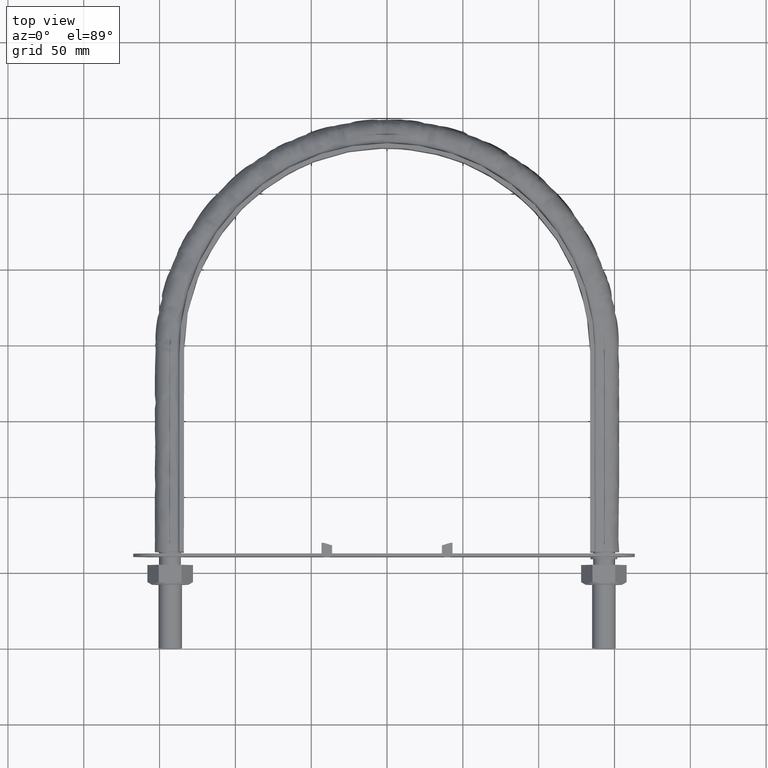
[diagram: clean part render]
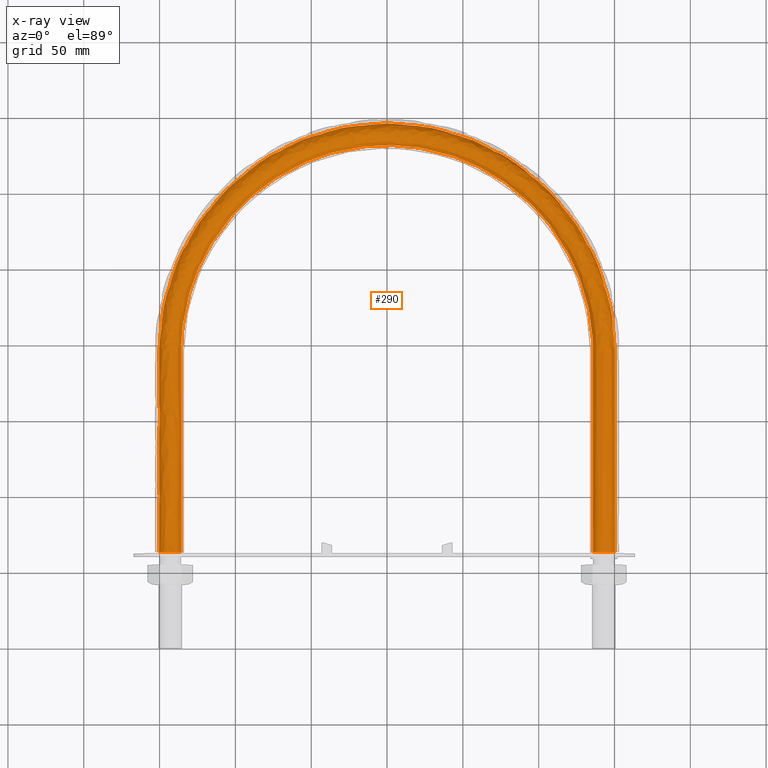
[diagram: x-ray — body ghosted, one internal face saturated and labeled with its STEP entity id]
A machine part, top view, then the same camera in x-ray: the body is ghosted and one INTERNAL B-rep face — a face not visible from any outside direction — is saturated and labeled: STEP entity #290.
In plain terms, the highlighted face is a freeform B-spline surface patch.
Its self-contained STEP definition (entity closure, byte-faithful):
#290 = ADVANCED_FACE( '', ( #415, #416 ), #417, .T. );
#415 = FACE_OUTER_BOUND( '', #1366, .T. );
#416 = FACE_OUTER_BOUND( '', #1367, .T. );
#417 = B_SPLINE_SURFACE_WITH_KNOTS( '', 3, 3, ( ( #1368, #1369, #1370, #1371, #1372, #1373, #1374, #1375, #1376, #1377, #1378, #1379, #1380, #1381, #1382, #1383, #1384 ), ( #1385, #1386, #1387, #1388, #1389, #1390, #1391, #1392, #1393, #1394, #1395, #1396, #1397, #1398, #1399, #1400, #1401 ), ( #1402, #1403, #1404, #1405, #1406, #1407, #1408, #1409, #1410, #1411, #1412, #1413, #1414, #1415, #1416, #1417, #1418 ), ( #1419, #1420, #1421, #1422, #1423, #1424, #1425, #1426, #1427, #1428, #1429, #1430, #1431, #1432, #1433, #1434, #1435 ), ( #1436, #1437, #1438, #1439, #1440, #1441, #1442, #1443, #1444, #1445, #1446, #1447, #1448, #1449, #1450, #1451, #1452 ), ( #1453, #1454, #1455, #1456, #1457, #1458, #1459, #1460, #1461, #1462, #1463, #1464, #1465, #1466, #1467, #1468, #1469 ), ( #1470, #1471, #1472, #1473, #1474, #1475, #1476, #1477, #1478, #1479, #1480, #1481, #1482, #1483, #1484, #1485, #1486 ), ( #1487, #1488, #1489, #1490, #1491, #1492, #1493, #1494, #1495, #1496, #1497, #1498, #1499, #1500, #1501, #1502, #1503 ), ( #1504, #1505, #1506, #1507, #1508, #1509, #1510, #1511, #1512, #1513, #1514, #1515, #1516, #1517, #1518, #1519, #1520 ), ( #1521, #1522, #1523, #1524, #1525, #1526, #1527, #1528, #1529, #1530, #1531, #1532, #1533, #1534, #1535, #1536, #1537 ), ( #1538, #1539, #1540, #1541, #1542, #1543, #1544, #1545, #1546, #1547, #1548, #1549, #1550, #1551, #1552, #1553, #1554 ) ), .UNSPECIFIED., .T., .F., .F., ( 2, 1, 1, 1, 1, 1, 1, 1, 1, 1, 1, 1, 2 ), ( 4, 3, 1, 1, 1, 1, 1, 1, 1, 3, 4 ), ( -0.250000000000000, -0.125000000000000, 0.000000000000000, 0.125000000000000, 0.250000000000000, 0.375000000000000, 0.500000000000000, 0.625000000000000, 0.750000000000000, 0.875000000000000, 1.00000000000000, 1.12500000000000, 1.25000000000000 ), ( 0.000000000000000, 1.00000000000000, 2.00000000000000, 3.00000000000000, 4.00000000000000, 5.00000000000000, 6.00000000000000, 7.00000000000000, 8.00000000000000, 9.00000000000000, 10.0000000000000 ), .UNSPECIFIED. );
#1366 = EDGE_LOOP( '', ( #2051, #2052, #2053, #2054, #2055, #2056, #2057, #2058 ) );
#1367 = EDGE_LOOP( '', ( #2059, #2060, #2061, #2062, #2063, #2064, #2065, #2066 ) );
#1368 = CARTESIAN_POINT( '', ( 137.436357463272, 54.9500000000000, -5.56364253672769 ) );
#1369 = CARTESIAN_POINT( '', ( 137.436357463272, 101.983333333333, -5.56364253672769 ) );
#1370 = CARTESIAN_POINT( '', ( 137.436357463272, 149.016666666667, -5.56364253672769 ) );
#1371 = CARTESIAN_POINT( '', ( 137.436357463272, 196.050000000000, -5.56364253672769 ) );
#1372 = CARTESIAN_POINT( '', ( 137.436357463272, 214.028352444625, -5.56364253672768 ) );
#1373 = CARTESIAN_POINT( '', ( 130.280303553579, 250.018327534897, -5.56364253672768 ) );
#1374 = CARTESIAN_POINT( '', ( 99.7122274668988, 295.761026995728, -5.56364253672770 ) );
#1375 = CARTESIAN_POINT( '', ( 53.9638686419761, 326.330646545342, -5.56364253672768 ) );
#1376 = CARTESIAN_POINT( '', ( 9.67882489103289E-014, 337.064212922238, -5.56364253672769 ) );
#1377 = CARTESIAN_POINT( '', ( -53.9638686419760, 326.330646545342, -5.56364253672769 ) );
#1378 = CARTESIAN_POINT( '', ( -99.7122274668987, 295.761026995728, -5.56364253672768 ) );
#1379 = CARTESIAN_POINT( '', ( -130.280303553579, 250.018327534896, -5.56364253672769 ) );
#1380 = CARTESIAN_POINT( '', ( -137.436357463272, 214.028352444625, -5.56364253672769 ) );
#1381 = CARTESIAN_POINT( '', ( -137.436357463272, 196.050000000000, -5.56364253672769 ) );
#1382 = CARTESIAN_POINT( '', ( -137.436357463272, 149.016666666667, -5.56364253672769 ) );
#1383 = CARTESIAN_POINT( '', ( -137.436357463272, 101.983333333333, -5.56364253672769 ) );
#1384 = CARTESIAN_POINT( '', ( -137.436357463272, 54.9500000000001, -5.56364253672769 ) );
#1385 = CARTESIAN_POINT( '', ( 135.131821268364, 54.9500000000000, 0.000000000000000 ) );
#1386 = CARTESIAN_POINT( '', ( 135.131821268364, 101.983333333333, 0.000000000000000 ) );
#1387 = CARTESIAN_POINT( '', ( 135.131821268364, 149.016666666667, 0.000000000000000 ) );
#1388 = CARTESIAN_POINT( '', ( 135.131821268364, 196.050000000000, 0.000000000000000 ) );
#1389 = CARTESIAN_POINT( '', ( 135.131821268364, 213.722751944464, 0.000000000000000 ) );
#1390 = CARTESIAN_POINT( '', ( 128.095760245211, 249.115307002900, 0.000000000000000 ) );
#1391 = CARTESIAN_POINT( '', ( 98.0402504041058, 294.088552681494, 0.000000000000000 ) );
#1392 = CARTESIAN_POINT( '', ( 53.0590011760586, 324.146245308814, 0.000000000000000 ) );
#1393 = CARTESIAN_POINT( '', ( 1.03437571945879E-013, 334.699609248139, 0.000000000000000 ) );
#1394 = CARTESIAN_POINT( '', ( -53.0590011760586, 324.146245308814, 0.000000000000000 ) );
#1395 = CARTESIAN_POINT( '', ( -98.0402504041056, 294.088552681494, 0.000000000000000 ) );
#1396 = CARTESIAN_POINT( '', ( -128.095760245211, 249.115307002900, 0.000000000000000 ) );
#1397 = CARTESIAN_POINT( '', ( -135.131821268364, 213.722751944464, 0.000000000000000 ) );
#1398 = CARTESIAN_POINT( '', ( -135.131821268364, 196.050000000000, 0.000000000000000 ) );
#1399 = CARTESIAN_POINT( '', ( -135.131821268364, 149.016666666667, 0.000000000000000 ) );
#1400 = CARTESIAN_POINT( '', ( -135.131821268364, 101.983333333333, 0.000000000000000 ) );
#1401 = CARTESIAN_POINT( '', ( -135.131821268364, 54.9500000000001, 0.000000000000000 ) );
#1402 = CARTESIAN_POINT( '', ( 137.436357463272, 54.9500000000000, 5.56364253672769 ) );
#1403 = CARTESIAN_POINT( '', ( 137.436357463272, 101.983333333333, 5.56364253672769 ) );
#1404 = CARTESIAN_POINT( '', ( 137.436357463272, 149.016666666667, 5.56364253672769 ) );
#1405 = CARTESIAN_POINT( '', ( 137.436357463272, 196.050000000000, 5.56364253672769 ) );
#1406 = CARTESIAN_POINT( '', ( 137.436357463272, 214.028352444625, 5.56364253672769 ) );
#1407 = CARTESIAN_POINT( '', ( 130.280303553579, 250.018327534897, 5.56364253672769 ) );
#1408 = CARTESIAN_POINT( '', ( 99.7122274668988, 295.761026995728, 5.56364253672770 ) );
#1409 = CARTESIAN_POINT( '', ( 53.9638686419761, 326.330646545342, 5.56364253672768 ) );
#1410 = CARTESIAN_POINT( '', ( 1.00257695862283E-013, 337.064212922238, 5.56364253672769 ) );
#1411 = CARTESIAN_POINT( '', ( -53.9638686419760, 326.330646545342, 5.56364253672769 ) );
#1412 = CARTESIAN_POINT( '', ( -99.7122274668987, 295.761026995728, 5.56364253672769 ) );
#1413 = CARTESIAN_POINT( '', ( -130.280303553579, 250.018327534896, 5.56364253672769 ) );
#1414 = CARTESIAN_POINT( '', ( -137.436357463272, 214.028352444625, 5.56364253672769 ) );
#1415 = CARTESIAN_POINT( '', ( -137.436357463272, 196.050000000000, 5.56364253672769 ) );
#1416 = CARTESIAN_POINT( '', ( -137.436357463272, 149.016666666667, 5.56364253672769 ) );
#1417 = CARTESIAN_POINT( '', ( -137.436357463272, 101.983333333333, 5.56364253672769 ) );
#1418 = CARTESIAN_POINT( '', ( -137.436357463272, 54.9500000000001, 5.56364253672769 ) );
#1419 = CARTESIAN_POINT( '', ( 143.000000000000, 54.9500000000000, 7.86817873163615 ) );
#1420 = CARTESIAN_POINT( '', ( 143.000000000000, 101.983333333333, 7.86817873163615 ) );
#1421 = CARTESIAN_POINT( '', ( 143.000000000000, 149.016666666667, 7.86817873163615 ) );
#1422 = CARTESIAN_POINT( '', ( 143.000000000000, 196.050000000000, 7.86817873163615 ) );
#1423 = CARTESIAN_POINT( '', ( 143.000000000000, 214.766137316781, 7.86817873163615 ) );
#1424 = CARTESIAN_POINT( '', ( 135.554257636233, 252.198411950344, 7.86817873163615 ) );
#1425 = CARTESIAN_POINT( '', ( 103.748737167870, 299.798737167870, 7.86817873163616 ) );
#1426 = CARTESIAN_POINT( '', ( 56.1484119503442, 331.604257636232, 7.86817873163614 ) );
#1427 = CARTESIAN_POINT( '', ( 9.40178878760316E-014, 342.772871181884, 7.86817873163615 ) );
#1428 = CARTESIAN_POINT( '', ( -56.1484119503442, 331.604257636232, 7.86817873163616 ) );
#1429 = CARTESIAN_POINT( '', ( -103.748737167870, 299.798737167870, 7.86817873163615 ) );
#1430 = CARTESIAN_POINT( '', ( -135.554257636232, 252.198411950344, 7.86817873163615 ) );
#1431 = CARTESIAN_POINT( '', ( -143.000000000000, 214.766137316781, 7.86817873163615 ) );
#1432 = CARTESIAN_POINT( '', ( -143.000000000000, 196.050000000000, 7.86817873163615 ) );
#1433 = CARTESIAN_POINT( '', ( -143.000000000000, 149.016666666667, 7.86817873163615 ) );
#1434 = CARTESIAN_POINT( '', ( -143.000000000000, 101.983333333333, 7.86817873163615 ) );
#1435 = CARTESIAN_POINT( '', ( -143.000000000000, 54.9500000000001, 7.86817873163615 ) );
#1436 = CARTESIAN_POINT( '', ( 148.563642536728, 54.9500000000000, 5.56364253672769 ) );
#1437 = CARTESIAN_POINT( '', ( 148.563642536728, 101.983333333333, 5.56364253672769 ) );
#1438 = CARTESIAN_POINT( '', ( 148.563642536728, 149.016666666667, 5.56364253672769 ) );
#1439 = CARTESIAN_POINT( '', ( 148.563642536728, 196.050000000000, 5.56364253672769 ) );
#1440 = CARTESIAN_POINT( '', ( 148.563642536728, 215.503922188938, 5.56364253672769 ) );
#1441 = CARTESIAN_POINT( '', ( 140.828211718886, 254.378496365792, 5.56364253672769 ) );
#1442 = CARTESIAN_POINT( '', ( 107.785246868842, 303.836447340013, 5.56364253672770 ) );
#1443 = CARTESIAN_POINT( '', ( 58.3329552587123, 336.877868727123, 5.56364253672768 ) );
#1444 = CARTESIAN_POINT( '', ( 8.43086329378271E-014, 348.481529441530, 5.56364253672769 ) );
#1445 = CARTESIAN_POINT( '', ( -58.3329552587123, 336.877868727123, 5.56364253672769 ) );
#1446 = CARTESIAN_POINT( '', ( -107.785246868842, 303.836447340013, 5.56364253672769 ) );
#1447 = CARTESIAN_POINT( '', ( -140.828211718886, 254.378496365792, 5.56364253672769 ) );
#1448 = CARTESIAN_POINT( '', ( -148.563642536728, 215.503922188938, 5.56364253672769 ) );
#1449 = CARTESIAN_POINT( '', ( -148.563642536728, 196.050000000000, 5.56364253672769 ) );
#1450 = CARTESIAN_POINT( '', ( -148.563642536728, 149.016666666667, 5.56364253672769 ) );
#1451 = CARTESIAN_POINT( '', ( -148.563642536728, 101.983333333333, 5.56364253672769 ) );
#1452 = CARTESIAN_POINT( '', ( -148.563642536728, 54.9500000000001, 5.56364253672769 ) );
#1453 = CARTESIAN_POINT( '', ( 150.868178731636, 54.9500000000000, 9.63542166777172E-016 ) );
#1454 = CARTESIAN_POINT( '', ( 150.868178731636, 101.983333333333, 9.63542166777172E-016 ) );
#1455 = CARTESIAN_POINT( '', ( 150.868178731636, 149.016666666667, 9.63542166777172E-016 ) );
#1456 = CARTESIAN_POINT( '', ( 150.868178731636, 196.050000000000, 9.63542166777172E-016 ) );
#1457 = CARTESIAN_POINT( '', ( 150.868178731636, 215.809522689099, 9.63542166777172E-016 ) );
#1458 = CARTESIAN_POINT( '', ( 143.012755027254, 255.281516897789, 9.63542166777172E-016 ) );
#1459 = CARTESIAN_POINT( '', ( 109.457223931635, 305.508921654246, 9.63542166777174E-016 ) );
#1460 = CARTESIAN_POINT( '', ( 59.2378227246298, 339.062269963651, 9.63542166777171E-016 ) );
#1461 = CARTESIAN_POINT( '', ( 8.11287568542308E-014, 350.846133115629, 9.63542166777172E-016 ) );
#1462 = CARTESIAN_POINT( '', ( -59.2378227246298, 339.062269963651, 9.63542166777173E-016 ) );
#1463 = CARTESIAN_POINT( '', ( -109.457223931635, 305.508921654246, 9.63542166777172E-016 ) );
#1464 = CARTESIAN_POINT( '', ( -143.012755027254, 255.281516897788, 9.63542166777172E-016 ) );
#1465 = CARTESIAN_POINT( '', ( -150.868178731636, 215.809522689099, 9.63542166777172E-016 ) );
#1466 = CARTESIAN_POINT( '', ( -150.868178731636, 196.050000000000, 9.63542166777172E-016 ) );
#1467 = CARTESIAN_POINT( '', ( -150.868178731636, 149.016666666667, 9.63542166777172E-016 ) );
#1468 = CARTESIAN_POINT( '', ( -150.868178731636, 101.983333333333, 9.63542166777172E-016 ) );
#1469 = CARTESIAN_POINT( '', ( -150.868178731636, 54.9500000000001, 9.63542166777172E-016 ) );
#1470 = CARTESIAN_POINT( '', ( 148.563642536728, 54.9500000000000, -5.56364253672769 ) );
#1471 = CARTESIAN_POINT( '', ( 148.563642536728, 101.983333333333, -5.56364253672769 ) );
#1472 = CARTESIAN_POINT( '', ( 148.563642536728, 149.016666666667, -5.56364253672769 ) );
#1473 = CARTESIAN_POINT( '', ( 148.563642536728, 196.050000000000, -5.56364253672769 ) );
#1474 = CARTESIAN_POINT( '', ( 148.563642536728, 215.503922188938, -5.56364253672769 ) );
#1475 = CARTESIAN_POINT( '', ( 140.828211718886, 254.378496365792, -5.56364253672769 ) );
#1476 = CARTESIAN_POINT( '', ( 107.785246868842, 303.836447340013, -5.56364253672770 ) );
#1477 = CARTESIAN_POINT( '', ( 58.3329552587123, 336.877868727123, -5.56364253672768 ) );
#1478 = CARTESIAN_POINT( '', ( 8.43086329378271E-014, 348.481529441530, -5.56364253672769 ) );
#1479 = CARTESIAN_POINT( '', ( -58.3329552587123, 336.877868727123, -5.56364253672769 ) );
#1480 = CARTESIAN_POINT( '', ( -107.785246868842, 303.836447340013, -5.56364253672769 ) );
#1481 = CARTESIAN_POINT( '', ( -140.828211718886, 254.378496365792, -5.56364253672769 ) );
#1482 = CARTESIAN_POINT( '', ( -148.563642536728, 215.503922188938, -5.56364253672769 ) );
#1483 = CARTESIAN_POINT( '', ( -148.563642536728, 196.050000000000, -5.56364253672769 ) );
#1484 = CARTESIAN_POINT( '', ( -148.563642536728, 149.016666666667, -5.56364253672769 ) );
#1485 = CARTESIAN_POINT( '', ( -148.563642536728, 101.983333333333, -5.56364253672769 ) );
#1486 = CARTESIAN_POINT( '', ( -148.563642536728, 54.9500000000001, -5.56364253672769 ) );
#1487 = CARTESIAN_POINT( '', ( 143.000000000000, 54.9500000000000, -7.86817873163615 ) );
#1488 = CARTESIAN_POINT( '', ( 143.000000000000, 101.983333333333, -7.86817873163615 ) );
#1489 = CARTESIAN_POINT( '', ( 143.000000000000, 149.016666666667, -7.86817873163615 ) );
#1490 = CARTESIAN_POINT( '', ( 143.000000000000, 196.050000000000, -7.86817873163615 ) );
#1491 = CARTESIAN_POINT( '', ( 143.000000000000, 214.766137316781, -7.86817873163615 ) );
#1492 = CARTESIAN_POINT( '', ( 135.554257636233, 252.198411950344, -7.86817873163615 ) );
#1493 = CARTESIAN_POINT( '', ( 103.748737167870, 299.798737167870, -7.86817873163616 ) );
#1494 = CARTESIAN_POINT( '', ( 56.1484119503442, 331.604257636232, -7.86817873163614 ) );
#1495 = CARTESIAN_POINT( '', ( 9.40178878760316E-014, 342.772871181884, -7.86817873163615 ) );
#1496 = CARTESIAN_POINT( '', ( -56.1484119503442, 331.604257636232, -7.86817873163616 ) );
#1497 = CARTESIAN_POINT( '', ( -103.748737167870, 299.798737167870, -7.86817873163615 ) );
#1498 = CARTESIAN_POINT( '', ( -135.554257636232, 252.198411950344, -7.86817873163615 ) );
#1499 = CARTESIAN_POINT( '', ( -143.000000000000, 214.766137316781, -7.86817873163615 ) );
#1500 = CARTESIAN_POINT( '', ( -143.000000000000, 196.050000000000, -7.86817873163615 ) );
#1501 = CARTESIAN_POINT( '', ( -143.000000000000, 149.016666666667, -7.86817873163615 ) );
#1502 = CARTESIAN_POINT( '', ( -143.000000000000, 101.983333333333, -7.86817873163615 ) );
#1503 = CARTESIAN_POINT( '', ( -143.000000000000, 54.9500000000001, -7.86817873163615 ) );
#1504 = CARTESIAN_POINT( '', ( 137.436357463272, 54.9500000000000, -5.56364253672769 ) );
#1505 = CARTESIAN_POINT( '', ( 137.436357463272, 101.983333333333, -5.56364253672769 ) );
#1506 = CARTESIAN_POINT( '', ( 137.436357463272, 149.016666666667, -5.56364253672769 ) );
#1507 = CARTESIAN_POINT( '', ( 137.436357463272, 196.050000000000, -5.56364253672769 ) );
#1508 = CARTESIAN_POINT( '', ( 137.436357463272, 214.028352444625, -5.56364253672768 ) );
#1509 = CARTESIAN_POINT( '', ( 130.280303553579, 250.018327534897, -5.56364253672768 ) );
#1510 = CARTESIAN_POINT( '', ( 99.7122274668988, 295.761026995728, -5.56364253672770 ) );
#1511 = CARTESIAN_POINT( '', ( 53.9638686419761, 326.330646545342, -5.56364253672768 ) );
#1512 = CARTESIAN_POINT( '', ( 9.67882489103289E-014, 337.064212922238, -5.56364253672769 ) );
#1513 = CARTESIAN_POINT( '', ( -53.9638686419760, 326.330646545342, -5.56364253672769 ) );
#1514 = CARTESIAN_POINT( '', ( -99.7122274668987, 295.761026995728, -5.56364253672768 ) );
#1515 = CARTESIAN_POINT( '', ( -130.280303553579, 250.018327534896, -5.56364253672769 ) );
#1516 = CARTESIAN_POINT( '', ( -137.436357463272, 214.028352444625, -5.56364253672769 ) );
#1517 = CARTESIAN_POINT( '', ( -137.436357463272, 196.050000000000, -5.56364253672769 ) );
#1518 = CARTESIAN_POINT( '', ( -137.436357463272, 149.016666666667, -5.56364253672769 ) );
#1519 = CARTESIAN_POINT( '', ( -137.436357463272, 101.983333333333, -5.56364253672769 ) );
#1520 = CARTESIAN_POINT( '', ( -137.436357463272, 54.9500000000001, -5.56364253672769 ) );
#1521 = CARTESIAN_POINT( '', ( 135.131821268364, 54.9500000000000, 0.000000000000000 ) );
#1522 = CARTESIAN_POINT( '', ( 135.131821268364, 101.983333333333, 0.000000000000000 ) );
#1523 = CARTESIAN_POINT( '', ( 135.131821268364, 149.016666666667, 0.000000000000000 ) );
#1524 = CARTESIAN_POINT( '', ( 135.131821268364, 196.050000000000, 0.000000000000000 ) );
#1525 = CARTESIAN_POINT( '', ( 135.131821268364, 213.722751944464, 0.000000000000000 ) );
#1526 = CARTESIAN_POINT( '', ( 128.095760245211, 249.115307002900, 0.000000000000000 ) );
#1527 = CARTESIAN_POINT( '', ( 98.0402504041058, 294.088552681494, 0.000000000000000 ) );
#1528 = CARTESIAN_POINT( '', ( 53.0590011760586, 324.146245308814, 0.000000000000000 ) );
#1529 = CARTESIAN_POINT( '', ( 1.03437571945879E-013, 334.699609248139, 0.000000000000000 ) );
#1530 = CARTESIAN_POINT( '', ( -53.0590011760586, 324.146245308814, 0.000000000000000 ) );
#1531 = CARTESIAN_POINT( '', ( -98.0402504041056, 294.088552681494, 0.000000000000000 ) );
#1532 = CARTESIAN_POINT( '', ( -128.095760245211, 249.115307002900, 0.000000000000000 ) );
#1533 = CARTESIAN_POINT( '', ( -135.131821268364, 213.722751944464, 0.000000000000000 ) );
#1534 = CARTESIAN_POINT( '', ( -135.131821268364, 196.050000000000, 0.000000000000000 ) );
#1535 = CARTESIAN_POINT( '', ( -135.131821268364, 149.016666666667, 0.000000000000000 ) );
#1536 = CARTESIAN_POINT( '', ( -135.131821268364, 101.983333333333, 0.000000000000000 ) );
#1537 = CARTESIAN_POINT( '', ( -135.131821268364, 54.9500000000001, 0.000000000000000 ) );
#1538 = CARTESIAN_POINT( '', ( 137.436357463272, 54.9500000000000, 5.56364253672769 ) );
#1539 = CARTESIAN_POINT( '', ( 137.436357463272, 101.983333333333, 5.56364253672769 ) );
#1540 = CARTESIAN_POINT( '', ( 137.436357463272, 149.016666666667, 5.56364253672769 ) );
#1541 = CARTESIAN_POINT( '', ( 137.436357463272, 196.050000000000, 5.56364253672769 ) );
#1542 = CARTESIAN_POINT( '', ( 137.436357463272, 214.028352444625, 5.56364253672769 ) );
#1543 = CARTESIAN_POINT( '', ( 130.280303553579, 250.018327534897, 5.56364253672769 ) );
#1544 = CARTESIAN_POINT( '', ( 99.7122274668988, 295.761026995728, 5.56364253672770 ) );
#1545 = CARTESIAN_POINT( '', ( 53.9638686419761, 326.330646545342, 5.56364253672768 ) );
#1546 = CARTESIAN_POINT( '', ( 1.00257695862283E-013, 337.064212922238, 5.56364253672769 ) );
#1547 = CARTESIAN_POINT( '', ( -53.9638686419760, 326.330646545342, 5.56364253672769 ) );
#1548 = CARTESIAN_POINT( '', ( -99.7122274668987, 295.761026995728, 5.56364253672769 ) );
#1549 = CARTESIAN_POINT( '', ( -130.280303553579, 250.018327534896, 5.56364253672769 ) );
#1550 = CARTESIAN_POINT( '', ( -137.436357463272, 214.028352444625, 5.56364253672769 ) );
#1551 = CARTESIAN_POINT( '', ( -137.436357463272, 196.050000000000, 5.56364253672769 ) );
#1552 = CARTESIAN_POINT( '', ( -137.436357463272, 149.016666666667, 5.56364253672769 ) );
#1553 = CARTESIAN_POINT( '', ( -137.436357463272, 101.983333333333, 5.56364253672769 ) );
#1554 = CARTESIAN_POINT( '', ( -137.436357463272, 54.9500000000001, 5.56364253672769 ) );
#2051 = ORIENTED_EDGE( '', *, *, #2600, .T. );
#2052 = ORIENTED_EDGE( '', *, *, #2601, .T. );
#2053 = ORIENTED_EDGE( '', *, *, #2602, .T. );
#2054 = ORIENTED_EDGE( '', *, *, #2603, .T. );
#2055 = ORIENTED_EDGE( '', *, *, #2604, .T. );
#2056 = ORIENTED_EDGE( '', *, *, #2594, .T. );
#2057 = ORIENTED_EDGE( '', *, *, #2605, .T. );
#2058 = ORIENTED_EDGE( '', *, *, #2585, .T. );
#2059 = ORIENTED_EDGE( '', *, *, #2606, .T. );
#2060 = ORIENTED_EDGE( '', *, *, #2607, .T. );
#2061 = ORIENTED_EDGE( '', *, *, #2591, .T. );
#2062 = ORIENTED_EDGE( '', *, *, #2588, .T. );
#2063 = ORIENTED_EDGE( '', *, *, #2589, .T. );
#2064 = ORIENTED_EDGE( '', *, *, #2590, .T. );
#2065 = ORIENTED_EDGE( '', *, *, #2593, .T. );
#2066 = ORIENTED_EDGE( '', *, *, #2592, .T. );
#2585 = EDGE_CURVE( '', #2794, #2795, #2796, .T. );
#2588 = EDGE_CURVE( '', #2787, #2785, #2800, .T. );
#2589 = EDGE_CURVE( '', #2785, #2783, #2801, .T. );
#2590 = EDGE_CURVE( '', #2783, #2781, #2802, .T. );
#2591 = EDGE_CURVE( '', #2789, #2787, #2803, .T. );
#2592 = EDGE_CURVE( '', #2779, #2778, #2804, .T. );
#2593 = EDGE_CURVE( '', #2781, #2779, #2805, .T. );
#2594 = EDGE_CURVE( '', #2806, #2807, #2808, .T. );
#2600 = EDGE_CURVE( '', #2795, #2818, #2819, .T. );
#2601 = EDGE_CURVE( '', #2818, #2820, #2821, .T. );
#2602 = EDGE_CURVE( '', #2820, #2822, #2823, .T. );
#2603 = EDGE_CURVE( '', #2822, #2824, #2825, .T. );
#2604 = EDGE_CURVE( '', #2824, #2806, #2826, .T. );
#2605 = EDGE_CURVE( '', #2807, #2794, #2827, .T. );
#2606 = EDGE_CURVE( '', #2778, #2791, #2828, .T. );
#2607 = EDGE_CURVE( '', #2791, #2789, #2829, .T. );
#2778 = VERTEX_POINT( '', #3534 );
#2779 = VERTEX_POINT( '', #3535 );
#2781 = VERTEX_POINT( '', #3537 );
#2783 = VERTEX_POINT( '', #3539 );
#2785 = VERTEX_POINT( '', #3541 );
#2787 = VERTEX_POINT( '', #3543 );
#2789 = VERTEX_POINT( '', #3545 );
#2791 = VERTEX_POINT( '', #3547 );
#2794 = VERTEX_POINT( '', #3550 );
#2795 = VERTEX_POINT( '', #3551 );
#2796 = B_SPLINE_CURVE_WITH_KNOTS( '', 3, ( #3552, #3553, #3554, #3555 ), .UNSPECIFIED., .F., .F., ( 4, 4 ), ( 0.0388191151159523, 0.0443582160703930 ), .UNSPECIFIED. );
#2800 = B_SPLINE_CURVE_WITH_KNOTS( '', 3, ( #3559, #3560, #3561, #3562 ), .UNSPECIFIED., .F., .F., ( 4, 4 ), ( 0.0166408835703285, 0.0221823261550820 ), .UNSPECIFIED. );
#2801 = B_SPLINE_CURVE_WITH_KNOTS( '', 3, ( #3563, #3564, #3565, #3566 ), .UNSPECIFIED., .F., .F., ( 4, 4 ), ( 0.0221823261550820, 0.0277332197883477 ), .UNSPECIFIED. );
#2802 = B_SPLINE_CURVE_WITH_KNOTS( '', 3, ( #3567, #3568, #3569, #3570 ), .UNSPECIFIED., .F., .F., ( 4, 4 ), ( 0.0277332197883477, 0.0332788337562376 ), .UNSPECIFIED. );
#2803 = B_SPLINE_CURVE_WITH_KNOTS( '', 3, ( #3571, #3572, #3573, #3574 ), .UNSPECIFIED., .F., .F., ( 4, 4 ), ( 0.0110956052857248, 0.0166408835703285 ), .UNSPECIFIED. );
#2804 = B_SPLINE_CURVE_WITH_KNOTS( '', 3, ( #3575, #3576, #3577, #3578 ), .UNSPECIFIED., .F., .F., ( 4, 4 ), ( 0.0388191151159619, 0.0443582160703923 ), .UNSPECIFIED. );
#2805 = B_SPLINE_CURVE_WITH_KNOTS( '', 3, ( #3579, #3580, #3581, #3582 ), .UNSPECIFIED., .F., .F., ( 4, 4 ), ( 0.0332788337562376, 0.0388191151159619 ), .UNSPECIFIED. );
#2806 = VERTEX_POINT( '', #3583 );
#2807 = VERTEX_POINT( '', #3584 );
#2808 = B_SPLINE_CURVE_WITH_KNOTS( '', 3, ( #3585, #3586, #3587, #3588 ), .UNSPECIFIED., .F., .F., ( 4, 4 ), ( 0.0277332197883479, 0.0332788337562375 ), .UNSPECIFIED. );
#2818 = VERTEX_POINT( '', #3598 );
#2819 = B_SPLINE_CURVE_WITH_KNOTS( '', 3, ( #3599, #3600, #3601, #3602 ), .UNSPECIFIED., .F., .F., ( 4, 4 ), ( 0.000000000000000, 0.00554405993452340 ), .UNSPECIFIED. );
#2820 = VERTEX_POINT( '', #3603 );
#2821 = B_SPLINE_CURVE_WITH_KNOTS( '', 3, ( #3604, #3605, #3606, #3607 ), .UNSPECIFIED., .F., .F., ( 4, 4 ), ( 0.00554405993452340, 0.0110956052857256 ), .UNSPECIFIED. );
#2822 = VERTEX_POINT( '', #3608 );
#2823 = B_SPLINE_CURVE_WITH_KNOTS( '', 3, ( #3609, #3610, #3611, #3612 ), .UNSPECIFIED., .F., .F., ( 4, 4 ), ( 0.0110956052857256, 0.0166408835703302 ), .UNSPECIFIED. );
#2824 = VERTEX_POINT( '', #3613 );
#2825 = B_SPLINE_CURVE_WITH_KNOTS( '', 3, ( #3614, #3615, #3616, #3617 ), .UNSPECIFIED., .F., .F., ( 4, 4 ), ( 0.0166408835703302, 0.0221823261550826 ), .UNSPECIFIED. );
#2826 = B_SPLINE_CURVE_WITH_KNOTS( '', 3, ( #3618, #3619, #3620, #3621 ), .UNSPECIFIED., .F., .F., ( 4, 4 ), ( 0.0221823261550826, 0.0277332197883479 ), .UNSPECIFIED. );
#2827 = B_SPLINE_CURVE_WITH_KNOTS( '', 3, ( #3622, #3623, #3624, #3625 ), .UNSPECIFIED., .F., .F., ( 4, 4 ), ( 0.0332788337562375, 0.0388191151159523 ), .UNSPECIFIED. );
#2828 = B_SPLINE_CURVE_WITH_KNOTS( '', 3, ( #3626, #3627, #3628, #3629 ), .UNSPECIFIED., .F., .F., ( 4, 4 ), ( 9.71445146547012E-017, 0.00554405993452459 ), .UNSPECIFIED. );
#2829 = B_SPLINE_CURVE_WITH_KNOTS( '', 3, ( #3630, #3631, #3632, #3633 ), .UNSPECIFIED., .F., .F., ( 4, 4 ), ( 0.00554405993452459, 0.0110956052857248 ), .UNSPECIFIED. );
#3534 = CARTESIAN_POINT( '', ( -135.900000000000, 63.5000000000003, 8.91193411066284E-014 ) );
#3535 = CARTESIAN_POINT( '', ( -137.979541853585, 63.5000000000001, 5.02045814643423 ) );
#3537 = CARTESIAN_POINT( '', ( -143.000000000000, 63.5000000000001, 7.09999999999998 ) );
#3539 = CARTESIAN_POINT( '', ( -148.020458146425, 63.5000000000001, 5.02045814642393 ) );
#3541 = CARTESIAN_POINT( '', ( -150.100000000000, 63.5000000000001, 1.31168007283358E-014 ) );
#3543 = CARTESIAN_POINT( '', ( -148.020458146434, 63.5000000000001, -5.02045814641448 ) );
#3545 = CARTESIAN_POINT( '', ( -143.000000000000, 63.5000000000001, -7.10000000000001 ) );
#3547 = CARTESIAN_POINT( '', ( -137.979541853575, 63.5000000000001, -5.02045814642433 ) );
#3550 = CARTESIAN_POINT( '', ( 137.979541853593, 63.5000000000000, -5.02045814644157 ) );
#3551 = CARTESIAN_POINT( '', ( 135.900000000000, 63.5000000000001, 4.33680868994202E-016 ) );
#3552 = CARTESIAN_POINT( '', ( 137.979541853593, 63.5000000000001, -5.02045814644156 ) );
#3553 = CARTESIAN_POINT( '', ( 136.668178731643, 63.5000000000001, -3.70909502450123 ) );
#3554 = CARTESIAN_POINT( '', ( 135.900000000002, 63.5000000000001, -1.85454751225464 ) );
#3555 = CARTESIAN_POINT( '', ( 135.900000000000, 63.5000000000001, -8.72349067981837E-012 ) );
#3559 = CARTESIAN_POINT( '', ( -148.020458146435, 63.5000000000003, -5.02045814641445 ) );
#3560 = CARTESIAN_POINT( '', ( -149.331821268368, 63.5000000000003, -3.70909502447566 ) );
#3561 = CARTESIAN_POINT( '', ( -150.100000000000, 63.5000000000003, -1.85454751223782 ) );
#3562 = CARTESIAN_POINT( '', ( -150.100000000000, 63.5000000000003, 3.06996961838161E-014 ) );
#3563 = CARTESIAN_POINT( '', ( -150.100000000000, 63.5000000000003, -2.43278192803271E-013 ) );
#3564 = CARTESIAN_POINT( '', ( -150.100000000000, 63.5000000000003, 1.85454751224220 ) );
#3565 = CARTESIAN_POINT( '', ( -149.331821268364, 63.5000000000003, 3.70909502448463 ) );
#3566 = CARTESIAN_POINT( '', ( -148.020458146425, 63.5000000000003, 5.02045814642395 ) );
#3567 = CARTESIAN_POINT( '', ( -148.020458146425, 63.5000000000000, 5.02045814642398 ) );
#3568 = CARTESIAN_POINT( '', ( -146.709095024486, 63.5000000000000, 6.33182126836367 ) );
#3569 = CARTESIAN_POINT( '', ( -144.854547512243, 63.5000000000000, 7.10000000000003 ) );
#3570 = CARTESIAN_POINT( '', ( -143.000000000000, 63.5000000000000, 7.10000000000000 ) );
#3571 = CARTESIAN_POINT( '', ( -143.000000000005, 63.5000000000002, -7.10000000000016 ) );
#3572 = CARTESIAN_POINT( '', ( -144.854547512250, 63.5000000000002, -7.09999999999900 ) );
#3573 = CARTESIAN_POINT( '', ( -146.709095024495, 63.5000000000003, -6.33182126835991 ) );
#3574 = CARTESIAN_POINT( '', ( -148.020458146434, 63.5000000000003, -5.02045814641446 ) );
#3575 = CARTESIAN_POINT( '', ( -137.979541853585, 63.5000000000002, 5.02045814643422 ) );
#3576 = CARTESIAN_POINT( '', ( -136.668178731640, 63.5000000000002, 3.70909502449430 ) );
#3577 = CARTESIAN_POINT( '', ( -135.900000000000, 63.5000000000002, 1.85454751224715 ) );
#3578 = CARTESIAN_POINT( '', ( -135.900000000000, 63.5000000000002, 4.33680868994202E-016 ) );
#3579 = CARTESIAN_POINT( '', ( -143.000000000005, 63.5000000000000, 7.09999999999984 ) );
#3580 = CARTESIAN_POINT( '', ( -141.145452487764, 63.5000000000000, 7.10000000000091 ) );
#3581 = CARTESIAN_POINT( '', ( -139.290904975524, 63.5000000000000, 6.33182126836762 ) );
#3582 = CARTESIAN_POINT( '', ( -137.979541853585, 63.5000000000000, 5.02045814643423 ) );
#3583 = CARTESIAN_POINT( '', ( 148.020458146425, 63.5000000000000, -5.02045814642358 ) );
#3584 = CARTESIAN_POINT( '', ( 143.000000000001, 63.5000000000000, -7.10000000000001 ) );
#3585 = CARTESIAN_POINT( '', ( 148.020458146425, 63.5000000000001, -5.02045814642359 ) );
#3586 = CARTESIAN_POINT( '', ( 146.709095024486, 63.5000000000001, -6.33182126836333 ) );
#3587 = CARTESIAN_POINT( '', ( 144.854547512244, 63.5000000000001, -7.09999999999972 ) );
#3588 = CARTESIAN_POINT( '', ( 143.000000000001, 63.5000000000001, -7.10000000000001 ) );
#3598 = CARTESIAN_POINT( '', ( 137.979541853574, 63.5000000000000, 5.02045814642340 ) );
#3599 = CARTESIAN_POINT( '', ( 135.900000000000, 63.5000000000001, 4.33680868994202E-016 ) );
#3600 = CARTESIAN_POINT( '', ( 135.900000000000, 63.5000000000001, 1.85454751224207 ) );
#3601 = CARTESIAN_POINT( '', ( 136.668178731636, 63.5000000000001, 3.70909502448414 ) );
#3602 = CARTESIAN_POINT( '', ( 137.979541853574, 63.5000000000001, 5.02045814642344 ) );
#3603 = CARTESIAN_POINT( '', ( 143.000000000001, 63.5000000000000, 7.09999999999998 ) );
#3604 = CARTESIAN_POINT( '', ( 137.979541853574, 63.5000000000001, 5.02045814642344 ) );
#3605 = CARTESIAN_POINT( '', ( 139.290904975514, 63.5000000000001, 6.33182126836357 ) );
#3606 = CARTESIAN_POINT( '', ( 141.145452487757, 63.5000000000001, 7.10000000000005 ) );
#3607 = CARTESIAN_POINT( '', ( 143.000000000000, 63.5000000000001, 7.10000000000001 ) );
#3608 = CARTESIAN_POINT( '', ( 148.020458146435, 63.5000000000000, 5.02045814641363 ) );
#3609 = CARTESIAN_POINT( '', ( 143.000000000001, 63.5000000000001, 7.10000000000000 ) );
#3610 = CARTESIAN_POINT( '', ( 144.854547512248, 63.5000000000001, 7.09999999999983 ) );
#3611 = CARTESIAN_POINT( '', ( 146.709095024496, 63.5000000000001, 6.33182126835941 ) );
#3612 = CARTESIAN_POINT( '', ( 148.020458146436, 63.5000000000001, 5.02045814641344 ) );
#3613 = CARTESIAN_POINT( '', ( 150.100000000000, 63.5000000000000, -1.94406258669302E-014 ) );
#3614 = CARTESIAN_POINT( '', ( 148.020458146435, 63.5000000000001, 5.02045814641366 ) );
#3615 = CARTESIAN_POINT( '', ( 149.331821268368, 63.5000000000001, 3.70909502447491 ) );
#3616 = CARTESIAN_POINT( '', ( 150.100000000001, 63.5000000000001, 1.85454751223488 ) );
#3617 = CARTESIAN_POINT( '', ( 150.100000000000, 63.5000000000001, -5.56448845036977E-012 ) );
#3618 = CARTESIAN_POINT( '', ( 150.100000000000, 63.5000000000001, -3.37563280867296E-014 ) );
#3619 = CARTESIAN_POINT( '', ( 150.100000000000, 63.5000000000001, -1.85454751224216 ) );
#3620 = CARTESIAN_POINT( '', ( 149.331821268364, 63.5000000000001, -3.70909502448430 ) );
#3621 = CARTESIAN_POINT( '', ( 148.020458146425, 63.5000000000001, -5.02045814642360 ) );
#3622 = CARTESIAN_POINT( '', ( 143.000000000001, 63.5000000000001, -7.10000000000000 ) );
#3623 = CARTESIAN_POINT( '', ( 141.145452487766, 63.5000000000001, -7.10000000000019 ) );
#3624 = CARTESIAN_POINT( '', ( 139.290904975531, 63.5000000000001, -6.33182126837073 ) );
#3625 = CARTESIAN_POINT( '', ( 137.979541853593, 63.5000000000001, -5.02045814644177 ) );
#3626 = CARTESIAN_POINT( '', ( -135.900000000000, 63.5000000000002, 8.27246257606440E-014 ) );
#3627 = CARTESIAN_POINT( '', ( -135.900000000000, 63.5000000000002, -1.85454751224245 ) );
#3628 = CARTESIAN_POINT( '', ( -136.668178731636, 63.5000000000002, -3.70909502448497 ) );
#3629 = CARTESIAN_POINT( '', ( -137.979541853575, 63.5000000000002, -5.02045814642432 ) );
#3630 = CARTESIAN_POINT( '', ( -137.979541853575, 63.5000000000002, -5.02045814642434 ) );
#3631 = CARTESIAN_POINT( '', ( -139.290904975515, 63.5000000000002, -6.33182126836380 ) );
#3632 = CARTESIAN_POINT( '', ( -141.145452487757, 63.5000000000003, -7.10000000000001 ) );
#3633 = CARTESIAN_POINT( '', ( -143.000000000000, 63.5000000000003, -7.10000000000000 ) );